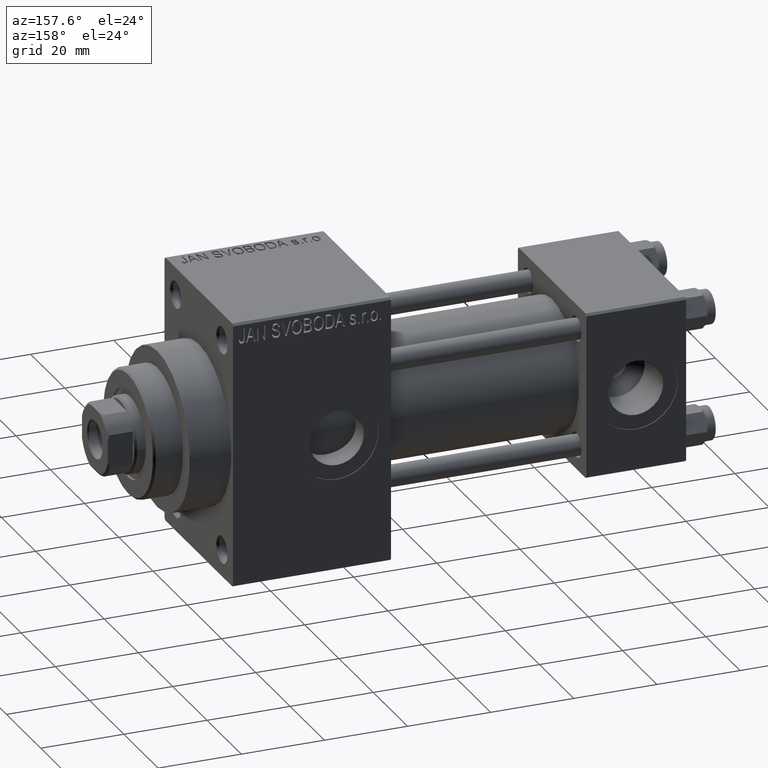
[diagram: clean part render]
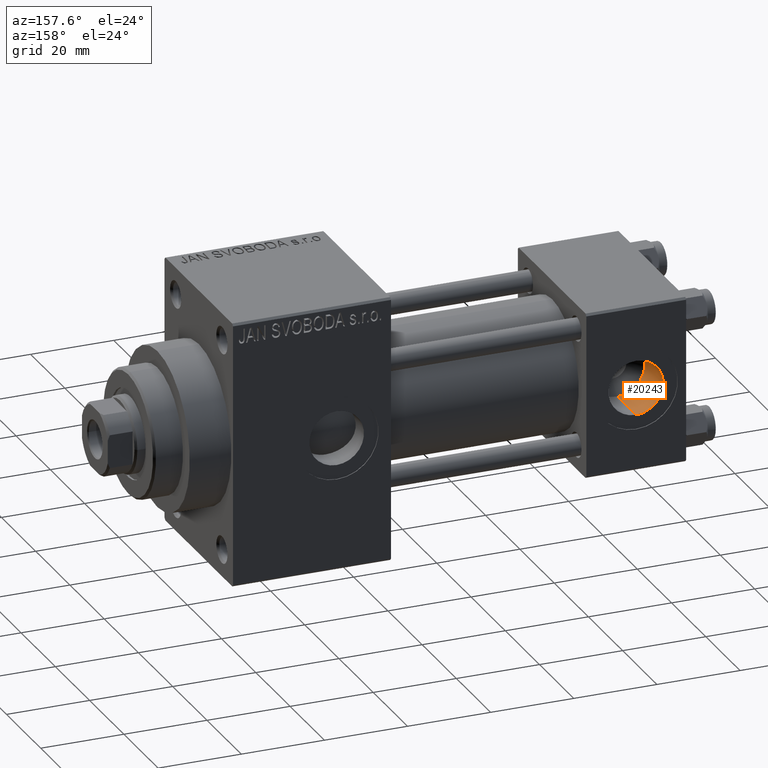
[diagram: same view with one face highlighted and labeled with its STEP entity id]
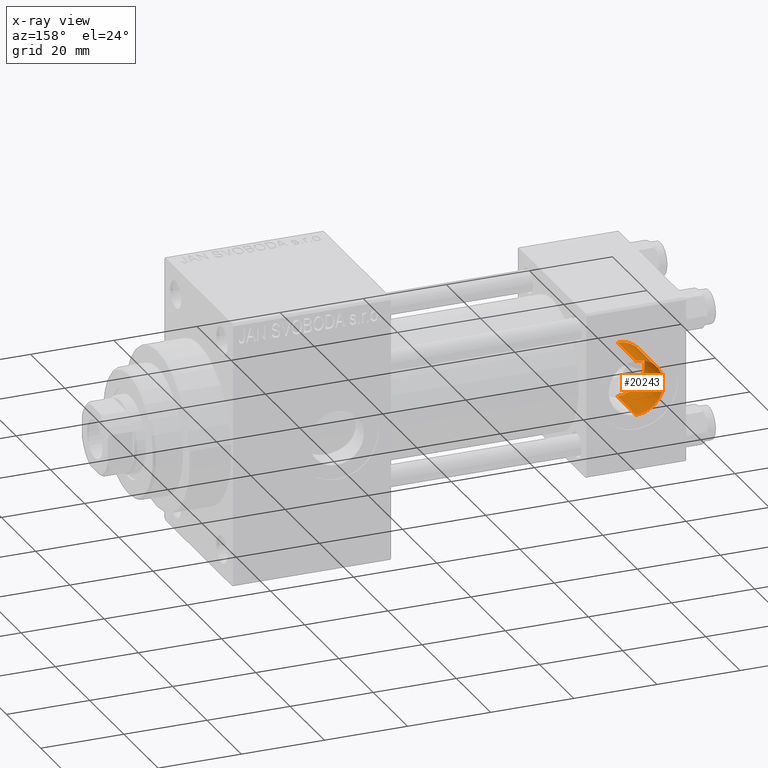
[diagram: x-ray of the same camera — body ghosted, the highlighted face saturated]
A machine part, auxiliary view. The second image highlights one B-rep face of the part: STEP entity #20243.
The next image is the same camera in x-ray: the body ghosted, the highlighted face saturated — about 0% of this face is hidden behind the body in this view.
In plain terms, the highlighted cylindrical surface (edge-blend (fillet) strip) has radius 6.58 mm, axis along (0, 1, 0).
Its self-contained STEP definition (entity closure, byte-faithful):
#313 = DIRECTION ( 'NONE',  ( 0.000000000000000000, 0.000000000000000000, 1.000000000000000000 ) ) ;
#1138 = ORIENTED_EDGE ( 'NONE', *, *, #1248, .T. ) ;
#1248 = EDGE_CURVE ( 'NONE', #43139, #14350, #33299, .T. ) ;
#2017 = VECTOR ( 'NONE', #3147, 1000.000000000000000 ) ;
#2056 = CARTESIAN_POINT ( 'NONE',  ( 12.00000000000000000, 8.939999999999997726, 6.579999999999998295 ) ) ;
#3147 = DIRECTION ( 'NONE',  ( -0.000000000000000000, 1.000000000000000000, -0.000000000000000000 ) ) ;
#3324 = DIRECTION ( 'NONE',  ( 0.000000000000000000, 0.000000000000000000, 1.000000000000000000 ) ) ;
#7213 = DIRECTION ( 'NONE',  ( -0.000000000000000000, 1.000000000000000000, -0.000000000000000000 ) ) ;
#7548 = CARTESIAN_POINT ( 'NONE',  ( 12.00000000000000000, 9.000000000000001776, -6.579999999999998295 ) ) ;
#8521 = EDGE_CURVE ( 'NONE', #14350, #35389, #45456, .T. ) ;
#10025 = EDGE_CURVE ( 'NONE', #43139, #21617, #13957, .T. ) ;
#10775 = EDGE_LOOP ( 'NONE', ( #1138, #43455, #43712, #29416 ) ) ;
#13957 = LINE ( 'NONE', #21826, #2017 ) ;
#14350 = VERTEX_POINT ( 'NONE', #46464 ) ;
#14615 = DIRECTION ( 'NONE',  ( -0.000000000000000000, -1.000000000000000000, -0.000000000000000000 ) ) ;
#19586 = AXIS2_PLACEMENT_3D ( 'NONE', #35182, #28748, #20395 ) ;
#20200 = CARTESIAN_POINT ( 'NONE',  ( 12.00000000000000000, 19.80000000000000071, 6.579999999999998295 ) ) ;
#20243 = ADVANCED_FACE ( 'NONE', ( #25923 ), #37976, .F. ) ;
#20395 = DIRECTION ( 'NONE',  ( 0.000000000000000000, 0.000000000000000000, 1.000000000000000000 ) ) ;
#21074 = AXIS2_PLACEMENT_3D ( 'NONE', #38220, #7213, #313 ) ;
#21617 = VERTEX_POINT ( 'NONE', #20200 ) ;
#21826 = CARTESIAN_POINT ( 'NONE',  ( 12.00000000000000000, 9.000000000000001776, 6.579999999999998295 ) ) ;
#25923 = FACE_OUTER_BOUND ( 'NONE', #10775, .T. ) ;
#28649 = VECTOR ( 'NONE', #29931, 1000.000000000000000 ) ;
#28748 = DIRECTION ( 'NONE',  ( 0.000000000000000000, 1.000000000000000000, 0.000000000000000000 ) ) ;
#29416 = ORIENTED_EDGE ( 'NONE', *, *, #10025, .F. ) ;
#29931 = DIRECTION ( 'NONE',  ( -0.000000000000000000, 1.000000000000000000, -0.000000000000000000 ) ) ;
#31855 = EDGE_CURVE ( 'NONE', #35389, #21617, #43952, .T. ) ;
#33299 = CIRCLE ( 'NONE', #42733, 6.579999999999998295 ) ;
#35182 = CARTESIAN_POINT ( 'NONE',  ( 12.00000000000000000, 19.80000000000000071, 0.000000000000000000 ) ) ;
#35389 = VERTEX_POINT ( 'NONE', #45016 ) ;
#37976 = CYLINDRICAL_SURFACE ( 'NONE', #21074, 6.579999999999998295 ) ;
#38220 = CARTESIAN_POINT ( 'NONE',  ( 12.00000000000000000, 9.000000000000001776, 0.000000000000000000 ) ) ;
#40738 = CARTESIAN_POINT ( 'NONE',  ( 12.00000000000000000, 8.939999999999997726, 0.000000000000000000 ) ) ;
#42733 = AXIS2_PLACEMENT_3D ( 'NONE', #40738, #14615, #3324 ) ;
#43139 = VERTEX_POINT ( 'NONE', #2056 ) ;
#43455 = ORIENTED_EDGE ( 'NONE', *, *, #8521, .T. ) ;
#43712 = ORIENTED_EDGE ( 'NONE', *, *, #31855, .T. ) ;
#43952 = CIRCLE ( 'NONE', #19586, 6.579999999999998295 ) ;
#45016 = CARTESIAN_POINT ( 'NONE',  ( 12.00000000000000000, 19.80000000000000071, -6.579999999999998295 ) ) ;
#45456 = LINE ( 'NONE', #7548, #28649 ) ;
#46464 = CARTESIAN_POINT ( 'NONE',  ( 12.00000000000000000, 8.939999999999997726, -6.579999999999998295 ) ) ;